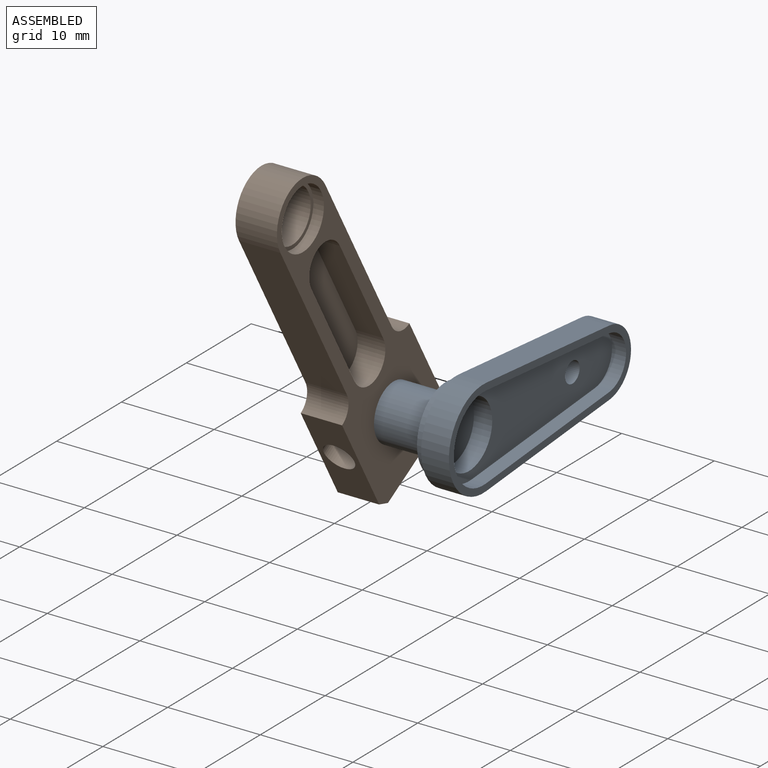
[diagram: assembled view]
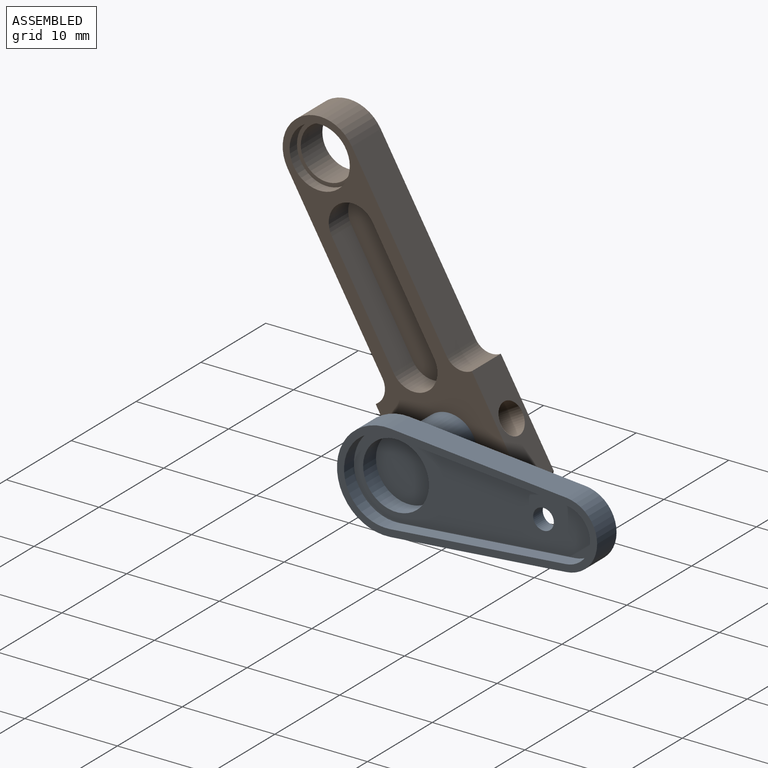
[diagram: assembled view, second angle]
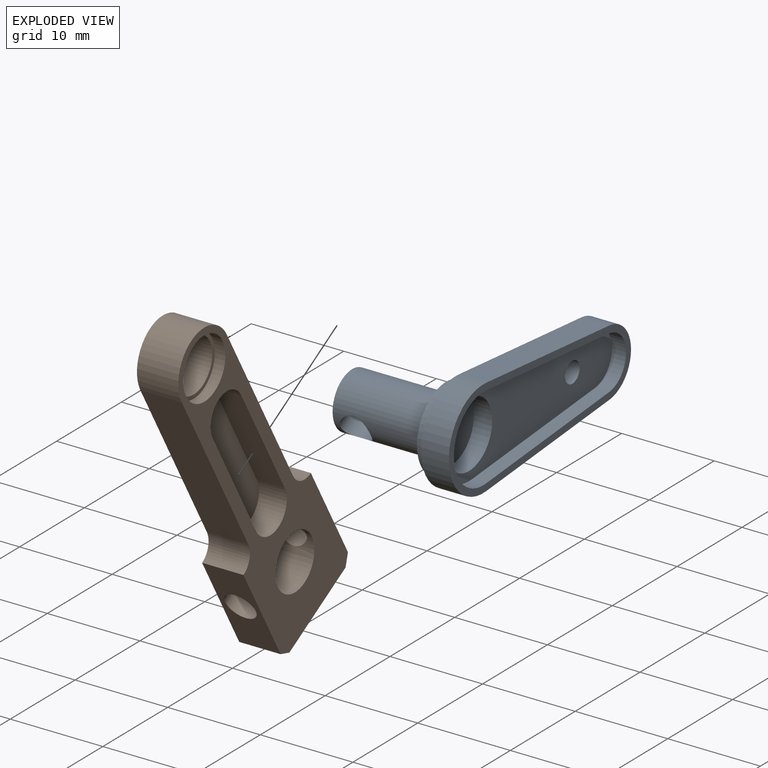
[diagram: exploded view]
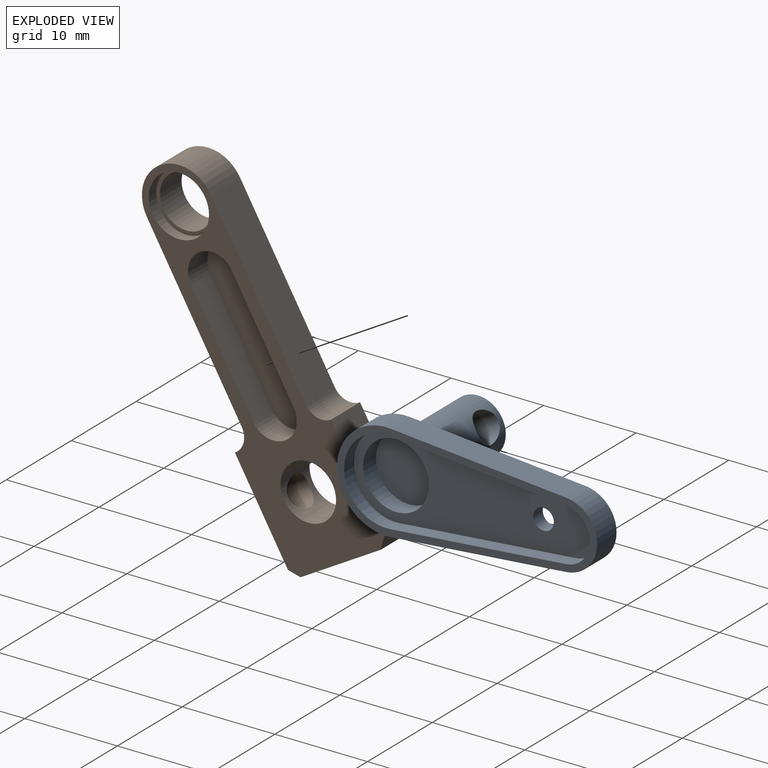
[diagram: exploded view, second angle]
ASSEMBLY  parts=2 mates=2
PART A: 19 faces, bbox 14.2x28.1x10.6 mm
  f0: plane 28.09x10.62mm, normal (-1,0,0), area 169.6mm2, adj f1,f2,f3,f4,f7,f17
  f1: cylinder r=5.31mm len=10.62mm, axis (-1,0,0), area 52.8mm2, adj f0,f2,f4,f5
  f2: plane 19x3mm, normal (0,0.09,-1), area 57.2mm2, adj f0,f1,f3,f5
  f3: cylinder r=3.64mm len=7.25mm, axis (-1,0,0), area 32.4mm2, adj f0,f2,f4,f5
  f4: plane 19x3mm, normal (0,0.09,1), area 57.2mm2, adj f0,f1,f3,f5
  f5: plane 28.09x10.62mm, normal (1,0,0), area 48.9mm2, adj f1,f2,f3,f4,f10,f11,f12,f13
  f6: plane 8.99x8.99mm, normal (-1,0,0), area 35.2mm2, adj f7,f9
  f7: cylinder r=4.5mm len=8.99mm, axis (1,0,0), area 28.7mm2, adj f0,f6
  f8: plane 6x6mm, normal (-1,0,0), area 28.3mm2, adj f9
  f9: cylinder r=3mm len=10.16mm, axis (1,0,0), area 173.7mm2, adj f6,f8,f18
  f10: cylinder r=2.88mm len=5.73mm, axis (1,0,0), area 13mm2, adj f5,f11,f13,f14
  f11: plane 19x1.66mm, normal (0,-0.09,1), area 29.1mm2, adj f5,f10,f12,f14
  f12: cylinder r=4.55mm len=9.09mm, axis (1,0,0), area 23mm2, adj f5,f11,f13,f14
  f13: plane 19x1.66mm, normal (0,-0.09,-1), area 29.1mm2, adj f5,f10,f12,f14
  f14: plane 26.57x9.09mm, normal (1,0,0), area 144.5mm2, adj f10,f11,f12,f13,f15,f17
  f15: cylinder r=3.56mm len=7.11mm, axis (1,0,0), area 44.3mm2, adj f14,f16
  f16: plane 7.11x7.11mm, normal (1,0,0), area 39.7mm2, adj f15
  f17: cylinder r=1.12mm len=2.24mm, axis (1,0,0), area 10.3mm2, adj f0,f14
  f18: cylinder r=1.65mm len=6.85mm, axis (0,0.87,0.5), area 57.2mm2, adj f9
PART B: 23 faces, bbox 4.5x38.9x12 mm
  f0: cylinder r=2.84mm len=5.69mm, axis (-1,0,0), area 59.5mm2, adj f2,f15
  f1: plane 38.91x11.99mm, normal (1,0,0), area 205.3mm2, adj f3,f4,f5,f6,f7,f8,f9,f10
  f2: plane 38.91x11.99mm, normal (-1,0,0), area 301.1mm2, adj f0,f3,f4,f5,f6,f7,f8,f9
  f3: cylinder r=4mm len=8mm, axis (-1,0,0), area 56.2mm2, adj f1,f2,f4,f12
  f4: plane 20.49x4.47mm, normal (0,0,-1), area 91.6mm2, adj f1,f2,f3,f5
  f5: cylinder r=1.99mm len=4.47mm, axis (-1,0,0), area 14mm2, adj f1,f2,f4,f6
  f6: plane 11.44x4.47mm, normal (0,0,-1), area 42.6mm2, adj f1,f2,f5,f7,f21
  f7: plane 4.47x0.99mm, normal (0,0.71,-0.71), area 6.3mm2, adj f1,f2,f6,f8
  f8: plane 10.01x4.47mm, normal (0,1,0), area 44.7mm2, adj f1,f2,f7,f9
  f9: plane 4.47x0.99mm, normal (0,0.71,0.71), area 6.3mm2, adj f1,f2,f8,f10
  f10: plane 11.44x4.47mm, normal (0,0,1), area 42.6mm2, adj f1,f2,f9,f11,f22
  f11: cylinder r=1.99mm len=4.47mm, axis (-1,0,0), area 14mm2, adj f1,f2,f10,f12
  f12: plane 20.49x4.47mm, normal (0,0,1), area 91.6mm2, adj f1,f2,f3,f11
  f13: cylinder r=3mm len=6mm, axis (-1,0,0), area 66.4mm2, adj f1,f2,f21,f22
  f14: cylinder r=3.25mm len=6.5mm, axis (1,0,0), area 23.3mm2, adj f1,f15
  f15: plane 6.5x6.5mm, normal (1,0,0), area 7.8mm2, adj f0,f14
  f16: cylinder r=2.54mm len=5.08mm, axis (1,0,0), area 23.9mm2, adj f1,f17,f19,f20
  f17: plane 13.34x3mm, normal (0,0,-1), area 40mm2, adj f1,f16,f18,f20
  f18: cylinder r=2.54mm len=5.08mm, axis (1,0,0), area 23.9mm2, adj f1,f17,f19,f20
  f19: plane 13.34x3mm, normal (0,0,1), area 40mm2, adj f1,f16,f18,f20
  f20: plane 18.42x5.08mm, normal (1,0,0), area 88mm2, adj f16,f17,f18,f19
  f21: cylinder r=1.65mm len=3.49mm, axis (0,0,-1), area 33.6mm2, adj f6,f13
  f22: cylinder r=1.65mm len=3.49mm, axis (0,0,-1), area 33.6mm2, adj f10,f13
PLACE A rot(axis=(-1,0,0),0deg) t=(0,-5.19,-3)mm
PLACE B rot(axis=(-1,0,0),60deg) t=(-11.18,-13.85,21.2)mm
MATE slider A.f18 <-> B.f21  axis (0,0.87,0.5) through (-8.94,0.12,-3)mm
MATE revolute A.f1 <-> B.f13  axis (-1,0,0) through (-11.18,0.12,-3)mm
